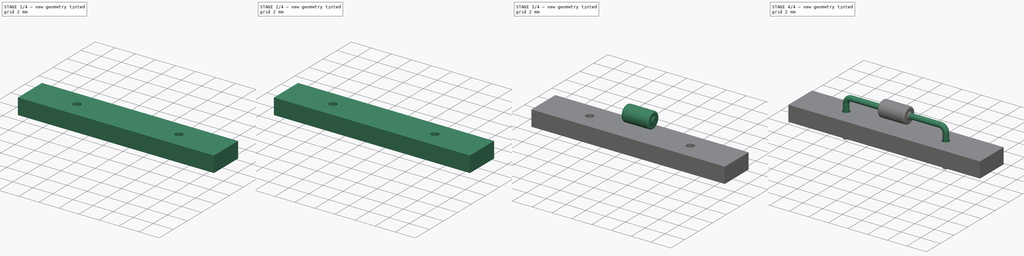
[diagram: build sequence overview — one tinted view per stage of 4, left to right]
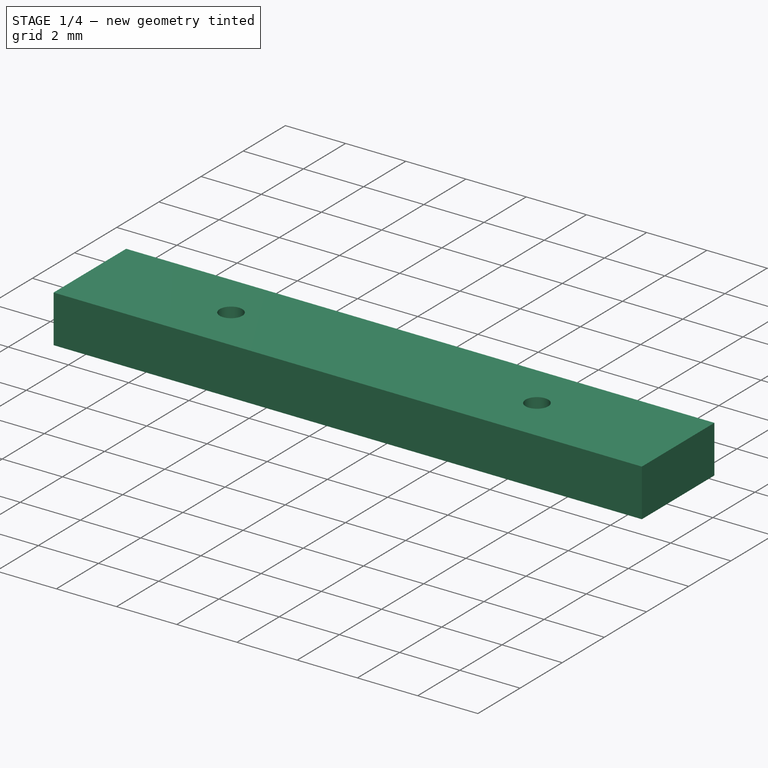
[diagram: stage 1 of 4 — iso view after this stage's code; geometry added in this stage tinted green]
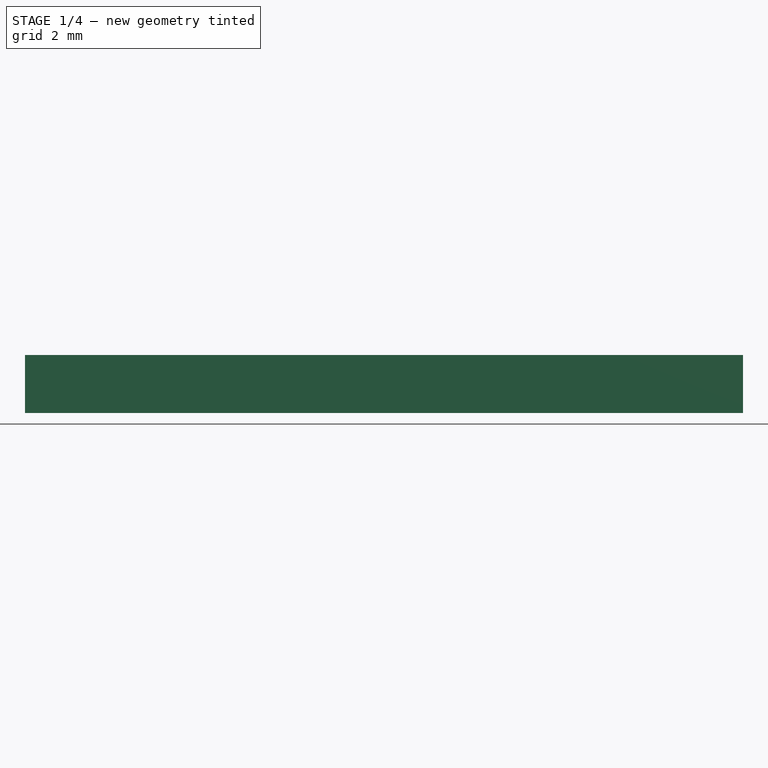
[diagram: stage 1 of 4 — front view after this stage's code; geometry added in this stage tinted green]
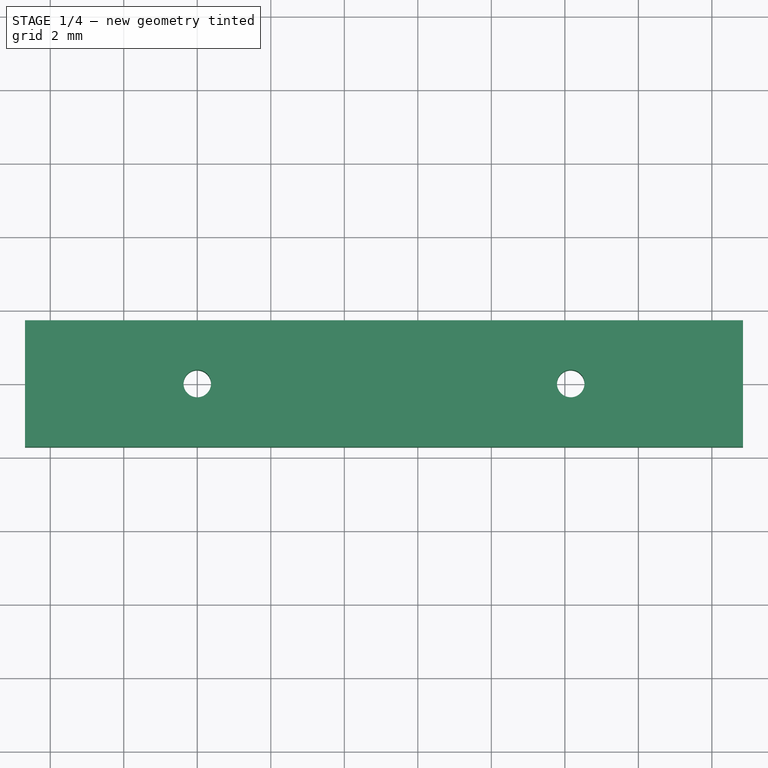
[diagram: stage 1 of 4 — top view after this stage's code; geometry added in this stage tinted green]
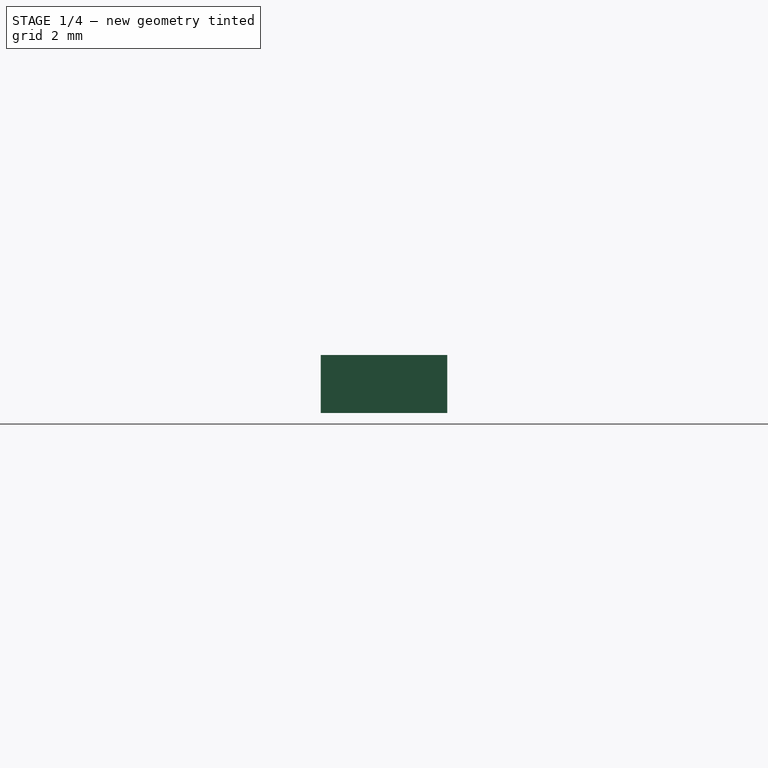
[diagram: stage 1 of 4 — right view after this stage's code; geometry added in this stage tinted green]
FCSTD DOCUMENT  (FreeCAD 0.16R6712 (Git))
Label: D_DO-34_SOD68_P10.16mm_Horizontal
License: All rights reserved
LicenseURL: http://en.wikipedia.org/wiki/All_rights_reserved
objects: Sketcher::SketchObject×7, Part::FeaturePython×7, PartDesign::Revolution×3, Spreadsheet::Sheet×1, Part::Sweep×1, Part::MultiFuse×1, App::DocumentObjectGroup×1
note: 22 computed .brp shape members not serialized (recipe doc carries the construction recipe); baked Part::Feature solids carry a one-line shape summary decoded from their .brp

FEATURE [Part::FeaturePython] THPs  label="PTHs"  # a2plus imported part (geometry in sourceFile) (typed FeaturePython)
  fixedPosition = true
FEATURE [Part::FeaturePython] newPCB  label="Pcb"  # a2plus imported part (geometry in sourceFile) (typed FeaturePython)
  fixedPosition = true
FEATURE [App::DocumentObjectGroup] D_DO_34_SOD68_P10_16mm_Horizontal_fp
  Group = -> [FCrtYd_lines,FFab_lines,Filk_lines,TopPads,BotPads,THPs,newPCB]
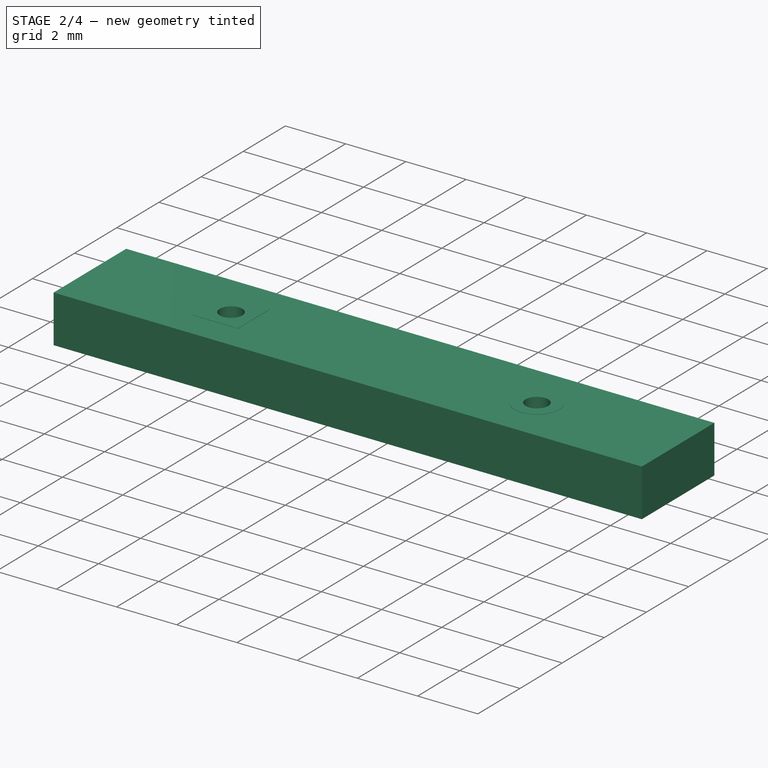
[diagram: stage 2 of 4 — iso view after this stage's code; geometry added in this stage tinted green]
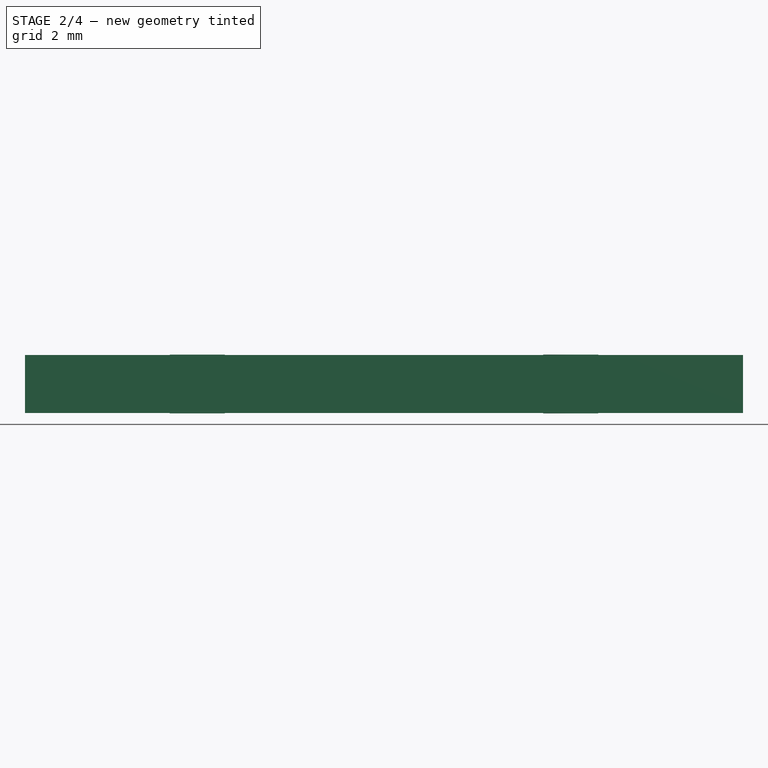
[diagram: stage 2 of 4 — front view after this stage's code; geometry added in this stage tinted green]
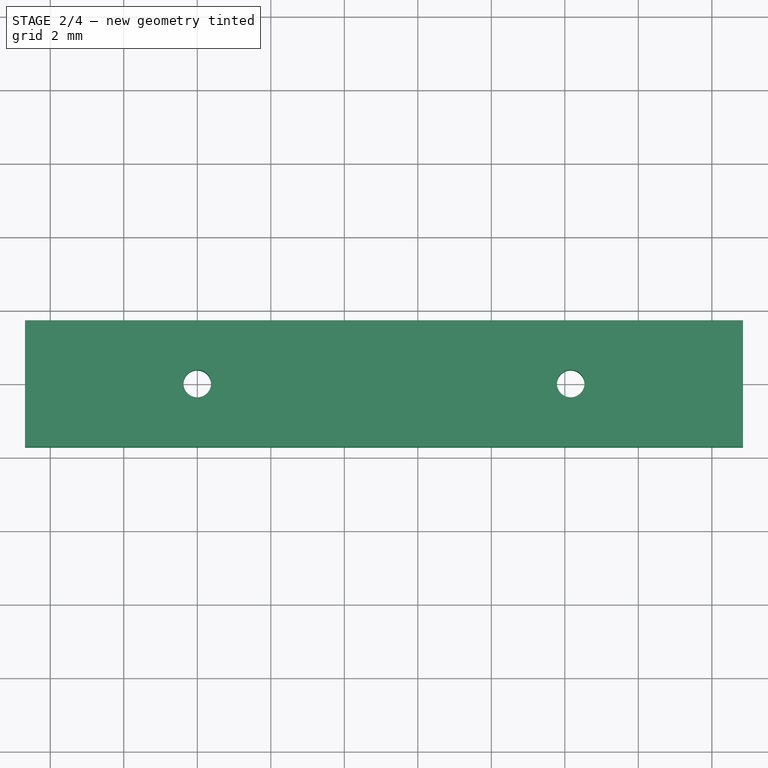
[diagram: stage 2 of 4 — top view after this stage's code; geometry added in this stage tinted green]
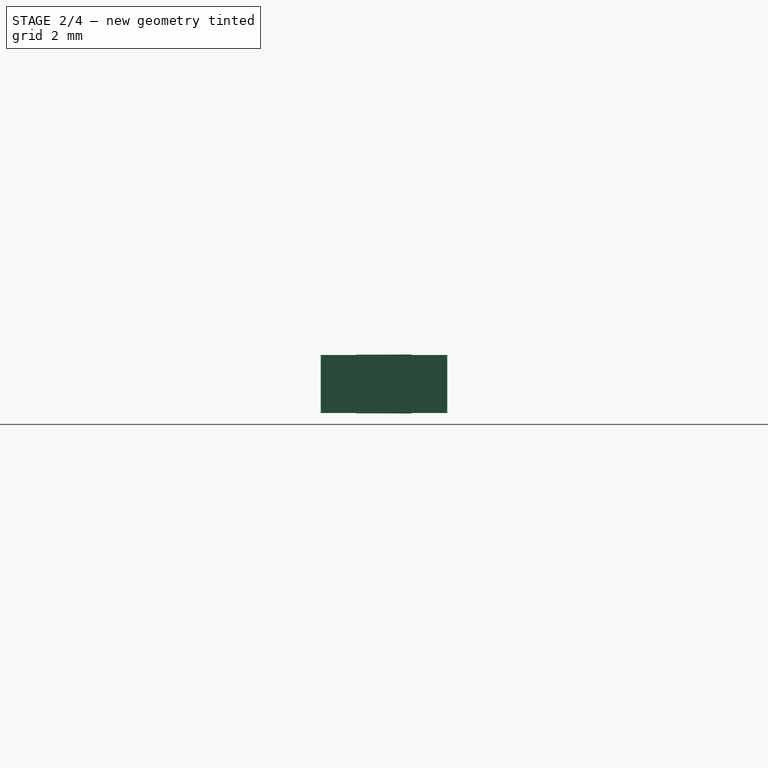
[diagram: stage 2 of 4 — right view after this stage's code; geometry added in this stage tinted green]
FEATURE [Part::FeaturePython] FCrtYd_lines  label="FCrtYd"  # a2plus imported part (geometry in sourceFile) (typed FeaturePython)
  fixedPosition = true
FEATURE [Part::FeaturePython] FFab_lines  label="FFab"  # a2plus imported part (geometry in sourceFile) (typed FeaturePython)
  fixedPosition = true
FEATURE [Part::FeaturePython] Filk_lines  label="FrontSilk"  # a2plus imported part (geometry in sourceFile) (typed FeaturePython)
  fixedPosition = true
FEATURE [Part::FeaturePython] TopPads  # a2plus imported part (geometry in sourceFile) (typed FeaturePython)
  fixedPosition = true
FEATURE [Part::FeaturePython] BotPads  # a2plus imported part (geometry in sourceFile) (typed FeaturePython)
  fixedPosition = true
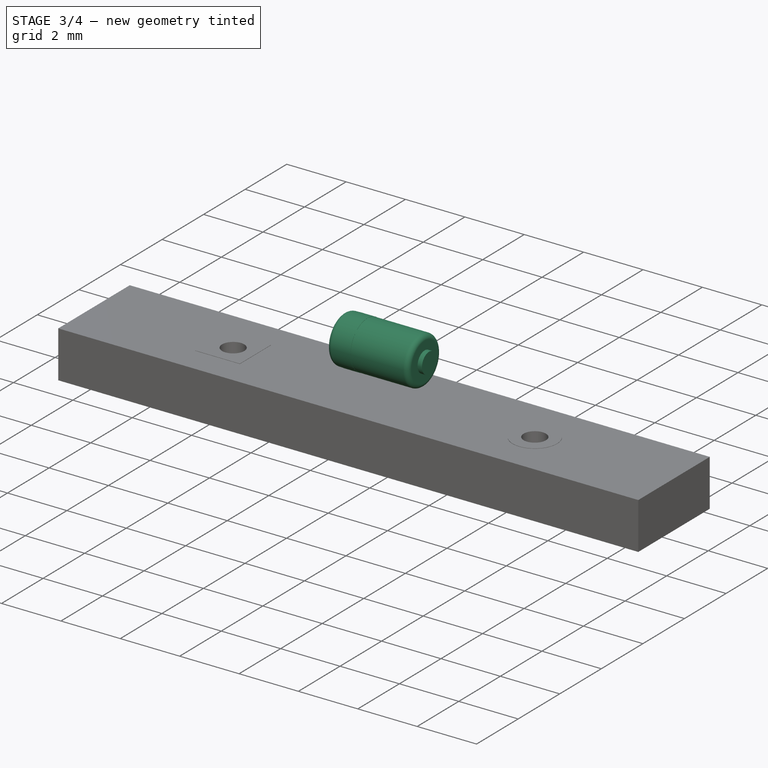
[diagram: stage 3 of 4 — iso view after this stage's code; geometry added in this stage tinted green]
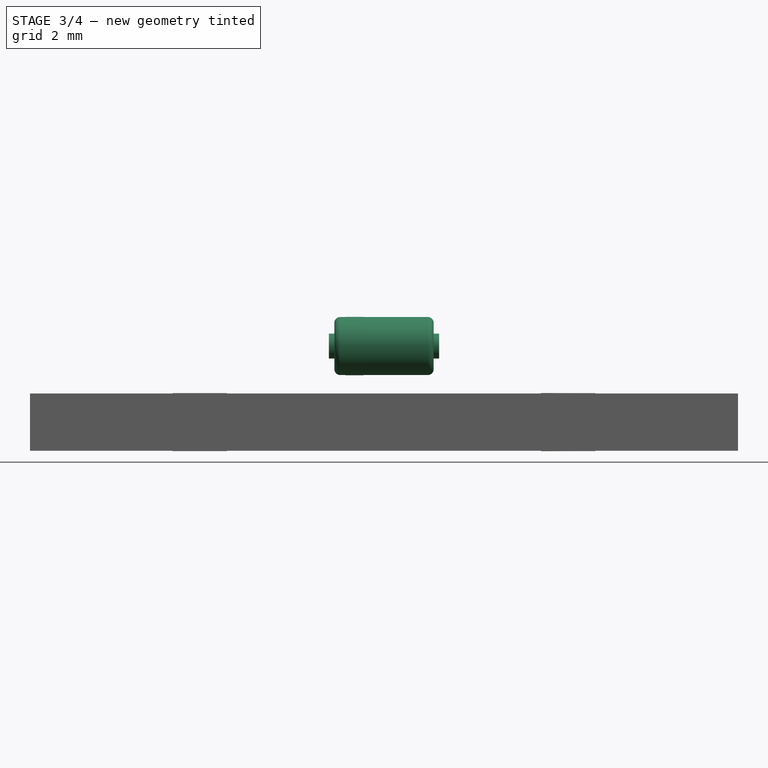
[diagram: stage 3 of 4 — front view after this stage's code; geometry added in this stage tinted green]
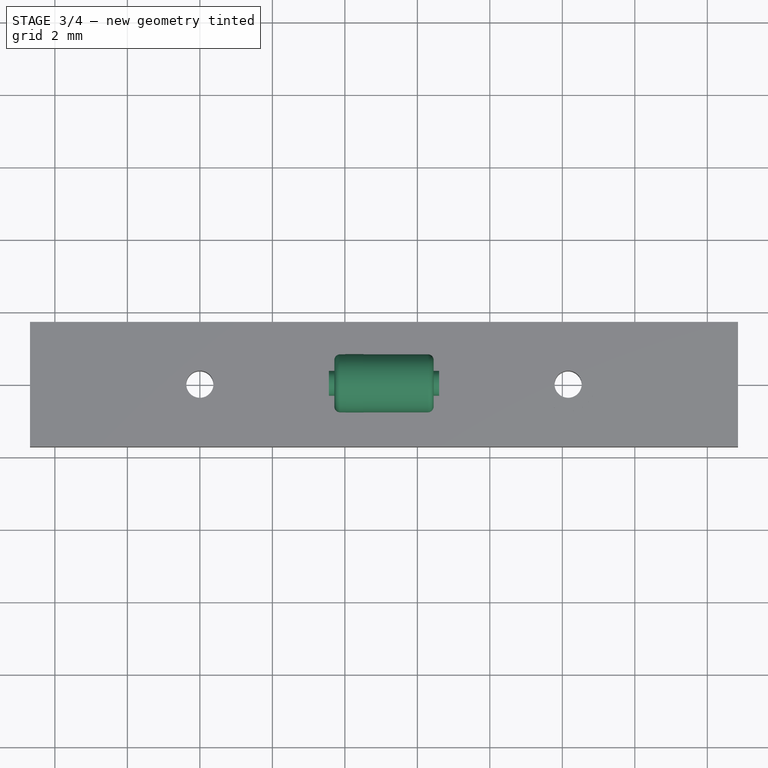
[diagram: stage 3 of 4 — top view after this stage's code; geometry added in this stage tinted green]
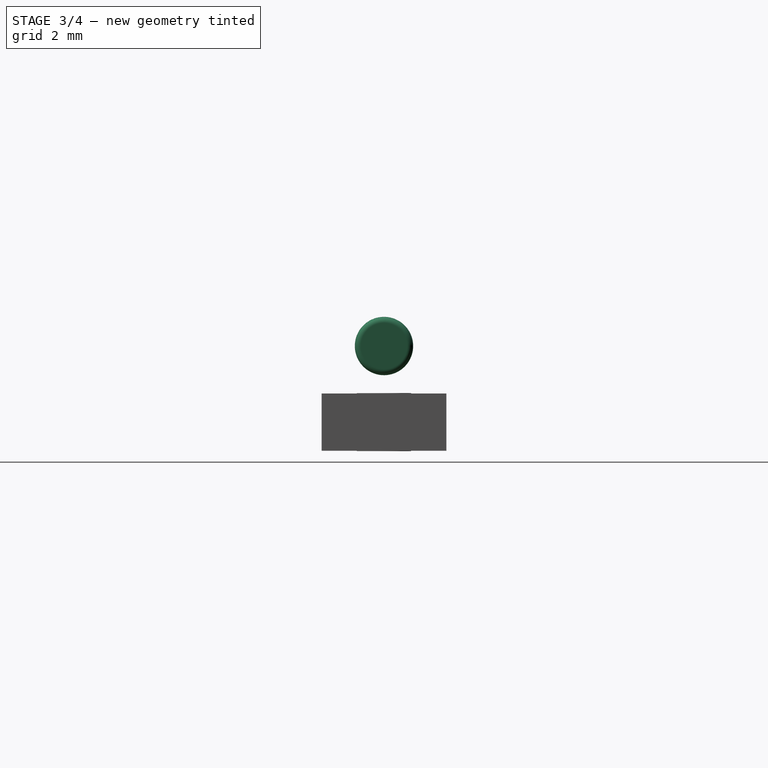
[diagram: stage 3 of 4 — right view after this stage's code; geometry added in this stage tinted green]
FEATURE [Sketcher::SketchObject] Sketch004
  Placement = pos=(0,0,0) rot=(1,0,0;1.5708rad)
  expr: Constraints[17] = Spreadsheet.d * 0.1
  expr: Constraints[15] = Spreadsheet.d / 2
  expr: Constraints[5] = Spreadsheet.L - 0.3
  expr: Constraints[4] = Spreadsheet.RM / 2
  expr: Constraints[1] = Spreadsheet.d / 2 + 0.5
  sketch-geometry (8):
    g0: LineSegment StartX=3.71 StartY=1.3 StartZ=0 EndX=6.45 EndY=1.3 EndZ=0
    g1: GeomPoint [constr] X=5.08 Y=1.3 Z=0
    g2: LineSegment StartX=3.71 StartY=1.3 StartZ=0 EndX=3.71 EndY=1.94 EndZ=0
    g3: LineSegment StartX=3.87 StartY=2.1 StartZ=0 EndX=6.29 EndY=2.1 EndZ=0
    g4: LineSegment StartX=6.45 StartY=1.94 StartZ=0 EndX=6.45 EndY=1.3 EndZ=0
    g5: ArcOfCircle CenterX=6.29 CenterY=1.94 CenterZ=0 NormalX=0 NormalY=0 NormalZ=1 Radius=0.16 StartAngle=0 EndAngle=1.5708
    g6: ArcOfCircle CenterX=3.87 CenterY=1.94 CenterZ=0 NormalX=0 NormalY=0 NormalZ=1 Radius=0.16 StartAngle=1.5708 EndAngle=3.14159
    g7: LineSegment [constr] StartX=5.08 StartY=1.3 StartZ=0 EndX=6.31872 EndY=1.3 EndZ=0
  constraints (20):
    c: Horizontal(g0)
    c: DistanceY(g-1,g0) = 1.3
    c: PointOnObject(g1,g0)
    c: Symmetric(g0,g0,g1)
    c: DistanceX(g-1,g1) = 5.08
    c: DistanceX(g0,g0) = 2.74
    c: Coincident(g2,g0)
    c: Vertical(g2)
    c: Horizontal(g3)
    c: Coincident(g4,g0)
    c: Vertical(g4)
    c: Tangent(g3,g5) = 1.5708
    c: Tangent(g4,g5) = 1.5708
    c: Tangent(g3,g6) = 1.5708
    c: Tangent(g2,g6) = 1.5708
    c: DistanceY(g0,g3) = 0.8
    c: Equal(g5,g6)
    c: Radius(g5) = 0.16
    c: Coincident(g7,g1)
    c: Horizontal(g7)
FEATURE [PartDesign::Revolution] Revolution
  Angle = 360
  Axis = (1.23872,0,0)
  Base = (5.08,0,1.3)
  Placement = pos=(0,0,0) rot=(1,0,0;1.5708rad)
  ReferenceAxis = -> Sketch004 [Axis0]
  Sketch = -> Sketch004
FEATURE [Sketcher::SketchObject] Sketch005
  Placement = pos=(0,0,0) rot=(1,0,0;1.5708rad)
  expr: Constraints[11] = Spreadsheet.d_wire * 1.25 / 2
  expr: Constraints[5] = Spreadsheet.L
  expr: Constraints[4] = Spreadsheet.RM / 2
  expr: Constraints[1] = Spreadsheet.d / 2 + 0.5
  sketch-geometry (6):
    g0: LineSegment StartX=3.56 StartY=1.3 StartZ=0 EndX=6.6 EndY=1.3 EndZ=0
    g1: GeomPoint [constr] X=5.08 Y=1.3 Z=0
    g2: LineSegment StartX=3.56 StartY=1.3 StartZ=0 EndX=3.56 EndY=1.64375 EndZ=0
    g3: LineSegment StartX=3.56 StartY=1.64375 StartZ=0 EndX=6.6 EndY=1.64375 EndZ=0
    g4: LineSegment StartX=6.6 StartY=1.64375 StartZ=0 EndX=6.6 EndY=1.3 EndZ=0
    g5: LineSegment [constr] StartX=5.08 StartY=1.3 StartZ=0 EndX=6.31872 EndY=1.3 EndZ=0
  constraints (16):
    c: Horizontal(g0)
    c: DistanceY(g-1,g0) = 1.3
    c: PointOnObject(g1,g0)
    c: Symmetric(g0,g0,g1)
    c: DistanceX(g-1,g1) = 5.08
    c: DistanceX(g0,g0) = 3.04
    c: Coincident(g2,g0)
    c: Vertical(g2)
    c: Horizontal(g3)
    c: Coincident(g4,g0)
    c: Vertical(g4)
    c: DistanceY(g0,g3) = 0.34375
    c: Coincident(g5,g1)
    c: Horizontal(g5)
    c: Coincident(g3,g4)
    c: Coincident(g3,g2)
FEATURE [PartDesign::Revolution] Revolution001
  Angle = 360
  Axis = (1.23872,0,0)
  Base = (5.08,0,1.3)
  Placement = pos=(0,0,0) rot=(1,0,0;1.5708rad)
  ReferenceAxis = -> Sketch005 [Axis0]
  Sketch = -> Sketch005
FEATURE [Sketcher::SketchObject] Sketch006
  Placement = pos=(0,0,0) rot=(1,0,0;1.5708rad)
  expr: Constraints[0] = Spreadsheet.RM / 2
  expr: Constraints[16] = Spreadsheet.L * 0.35
  expr: Constraints[14] = Spreadsheet.d / 2 + 0.5
  expr: Constraints[13] = Spreadsheet.d / 2
  sketch-geometry (6):
    g0: GeomPoint [constr] X=5.08 Y=1.3 Z=0
    g1: LineSegment [constr] StartX=5.08 StartY=1.3 StartZ=0 EndX=0 EndY=1.3 EndZ=0
    g2: LineSegment StartX=4.516 StartY=2.105 StartZ=0 EndX=4.016 EndY=2.105 EndZ=0
    g3: LineSegment StartX=4.016 StartY=2.105 StartZ=0 EndX=4.016 EndY=2.1 EndZ=0
    g4: LineSegment StartX=4.016 StartY=2.1 StartZ=0 EndX=4.516 EndY=2.1 EndZ=0
    g5: LineSegment StartX=4.516 StartY=2.1 StartZ=0 EndX=4.516 EndY=2.105 EndZ=0
  constraints (17):
    c: DistanceX(g-1,g0) = 5.08
    c: Coincident(g1,g0)
    c: Horizontal(g1)
    c: PointOnObject(g1,g-2)
    c: Coincident(g2,g3)
    c: Coincident(g3,g4)
    c: Coincident(g4,g5)
    c: Coincident(g5,g2)
    c: Horizontal(g2)
    c: Horizontal(g4)
    c: Vertical(g3)
    c: Vertical(g5)
    c: DistanceY(g3,g3) = 0.005
    c: DistanceY(g0,g3) = 0.8
    c: DistanceY(g-1,g1) = 1.3
    c: DistanceX(g2,g2) = 0.5
    c: DistanceX(g2,g0) = 1.064
FEATURE [PartDesign::Revolution] Revolution002
  Angle = 360
  Axis = (-5.08,0,0)
  Base = (5.08,0,1.3)
  Placement = pos=(0,0,0) rot=(1,0,0;1.5708rad)
  ReferenceAxis = -> Sketch006 [Axis0]
  Reversed = true
  Sketch = -> Sketch006
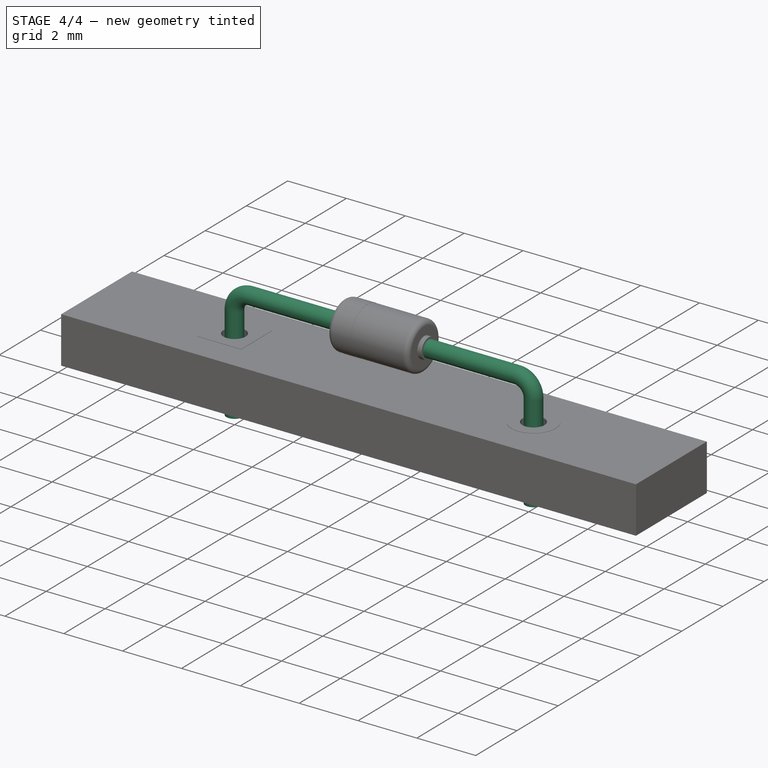
[diagram: stage 4 of 4 — iso view after this stage's code; geometry added in this stage tinted green]
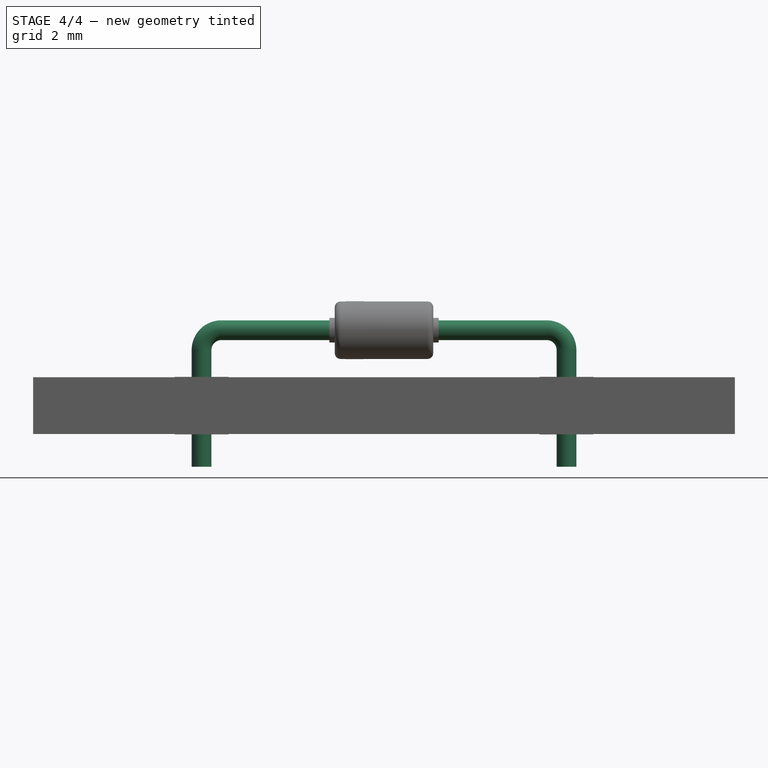
[diagram: stage 4 of 4 — front view after this stage's code; geometry added in this stage tinted green]
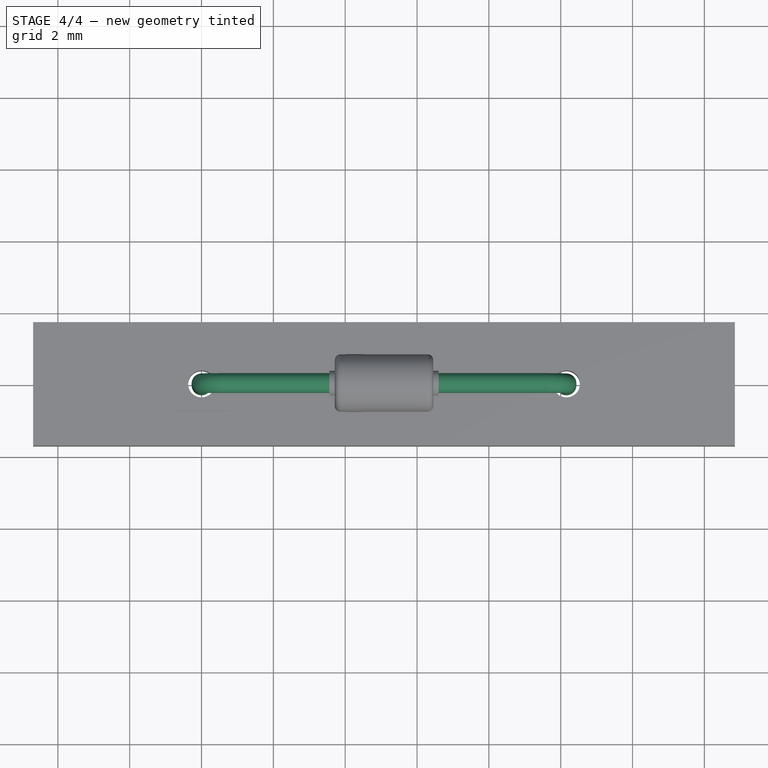
[diagram: stage 4 of 4 — top view after this stage's code; geometry added in this stage tinted green]
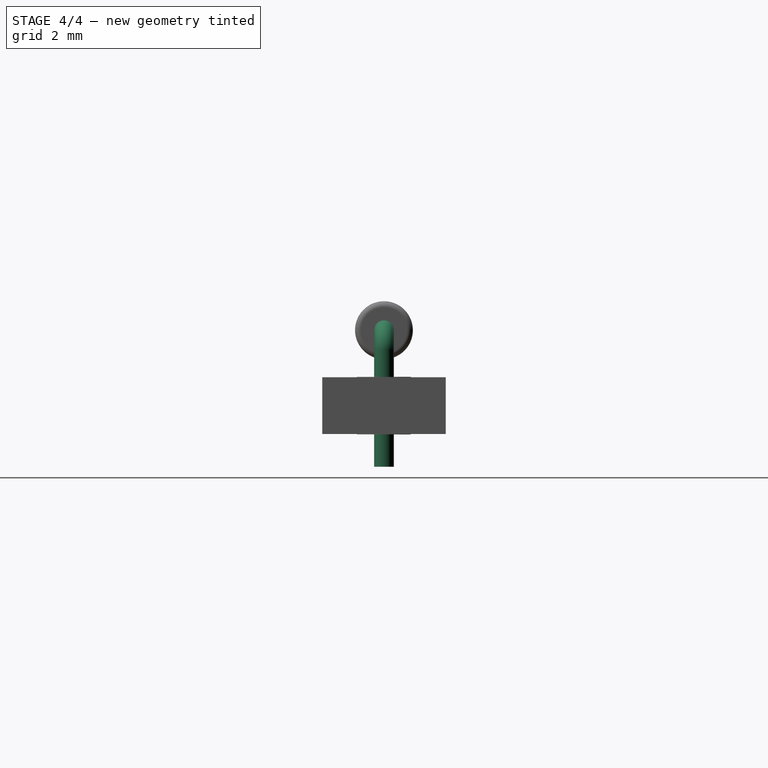
[diagram: stage 4 of 4 — right view after this stage's code; geometry added in this stage tinted green]
FEATURE [Sketcher::SketchObject] Sketch001
  Placement = pos=(0,0,0) rot=(1,0,0;1.5708rad)
  expr: Constraints[10] = Spreadsheet.d / 2 + 0.5
  expr: Constraints[3] = Spreadsheet.RM
  expr: Constraints[14] = Spreadsheet.d_wire
  expr: Constraints[13] = Spreadsheet.d_wire
  sketch-geometry (5):
    g0: LineSegment StartX=0.55 StartY=1.3 StartZ=0 EndX=9.61 EndY=1.3 EndZ=0
    g1: ArcOfCircle CenterX=9.61 CenterY=0.75 CenterZ=0 NormalX=0 NormalY=0 NormalZ=1 Radius=0.55 StartAngle=0 EndAngle=1.5708
    g2: ArcOfCircle CenterX=0.55 CenterY=0.75 CenterZ=0 NormalX=0 NormalY=0 NormalZ=1 Radius=0.55 StartAngle=1.5708 EndAngle=3.14159
    g3: LineSegment StartX=0 StartY=0.75 StartZ=0 EndX=0 EndY=-2.5 EndZ=0
    g4: LineSegment StartX=10.16 StartY=0.75 StartZ=0 EndX=10.16 EndY=-2.5 EndZ=0
  constraints (18):
    c: Horizontal(g0)
    c: Coincident(g1,g0)
    c: Coincident(g2,g0)
    c: DistanceX(g2,g1) = 10.16
    c: Vertical(g3)
    c: Vertical(g4)
    c: PointOnObject(g-1,g3)
    c: DistanceY(g3,g-1) = 2.5
    c: DistanceY(g3,g4) = 0
    c: Coincident(g2,g3)
    c: DistanceY(g-1,g0) = 1.3
    c: DistanceY(g2,g2) = 0
    c: DistanceY(g1,g1) = 0
    c: DistanceX(g2,g0) = 0.55
    c: DistanceX(g0,g1) = 0.55
    c: Coincident(g4,g1)
    c: DistanceX(g0,g2) = 0
    c: DistanceX(g1,g0) = 0
FEATURE [Sketcher::SketchObject] Sketch002  label="Axis0"
  Placement = pos=(0,0,0) rot=(1,0,0;1.5708rad)
  expr: Constraints[1] = Spreadsheet.L
  expr: Constraints[8] = Spreadsheet.d / 2 + 0.5
  expr: Constraints[7] = (Spreadsheet.RM - Spreadsheet.L) / 2
  expr: Constraints[11] = Spreadsheet.d / 2
  sketch-geometry (7):
    g0: LineSegment [constr] StartX=3.56 StartY=1.3 StartZ=0 EndX=6.6 EndY=1.3 EndZ=0
    g1: LineSegment [constr] StartX=3.56 StartY=1.3 StartZ=0 EndX=3.56 EndY=0 EndZ=0
    g2: LineSegment [constr] StartX=3.56 StartY=0 StartZ=0 EndX=0 EndY=0 EndZ=0
    g3: LineSegment StartX=3.56 StartY=1.3 StartZ=0 EndX=6.6 EndY=1.3 EndZ=0
    g4: LineSegment StartX=3.56 StartY=1.3 StartZ=0 EndX=3.56 EndY=2.1 EndZ=0
    g5: LineSegment StartX=6.6 StartY=1.3 StartZ=0 EndX=6.6 EndY=2.1 EndZ=0
    g6: LineSegment StartX=3.56 StartY=2.1 StartZ=0 EndX=6.6 EndY=2.1 EndZ=0
  constraints (19):
    c: Horizontal(g0)
    c: DistanceX(g0,g0) = 3.04
    c: Coincident(g1,g0)
    c: Vertical(g1)
    c: Coincident(g2,g1)
    c: Coincident(g2,g-1)
    c: Horizontal(g2)
    c: DistanceX(g2,g2) = 3.56
    c: DistanceY(g1,g1) = 1.3
    c: Coincident(g3,g0)
    c: Vertical(g4)
    c: DistanceY(g4,g4) = 0.8
    c: Coincident(g4,g0)
    c: Coincident(g5,g0)
    c: Vertical(g5)
    c: Equal(g5,g4)
    c: Coincident(g3,g0)
    c: Coincident(g6,g4)
    c: Coincident(g6,g5)
FEATURE [Sketcher::SketchObject] Sketch003
  Placement = pos=(0,0,0) rot=(1,0,0;1.5708rad)
  expr: Constraints[12] = Spreadsheet.L * 0.25
  expr: Constraints[13] = Spreadsheet.d / 2 - 0.01
  expr: Constraints[14] = (Spreadsheet.RM - Spreadsheet.L) / 2 + 0.15 * Spreadsheet.L
  expr: Constraints[2] = Spreadsheet.d / 2 + 0.5
  sketch-geometry (5):
    g0: LineSegment [constr] StartX=0 StartY=1.3 StartZ=0 EndX=4.17342 EndY=1.3 EndZ=0
    g1: LineSegment StartX=4.016 StartY=2.11 StartZ=0 EndX=4.776 EndY=2.11 EndZ=0
    g2: LineSegment StartX=4.776 StartY=2.11 StartZ=0 EndX=4.776 EndY=2.09 EndZ=0
    g3: LineSegment StartX=4.776 StartY=2.09 StartZ=0 EndX=4.016 EndY=2.09 EndZ=0
    g4: LineSegment StartX=4.016 StartY=2.09 StartZ=0 EndX=4.016 EndY=2.11 EndZ=0
  constraints (15):
    c: PointOnObject(g0,g-2)
    c: Horizontal(g0)
    c: DistanceY(g-1,g0) = 1.3
    c: Coincident(g1,g2)
    c: Coincident(g2,g3)
    c: Coincident(g3,g4)
    c: Coincident(g4,g1)
    c: Horizontal(g1)
    c: Horizontal(g3)
    c: Vertical(g2)
    c: Vertical(g4)
    c: DistanceY(g2,g1) = 0.02
    c: DistanceX(g1,g1) = 0.76
    c: DistanceY(g0,g2) = 0.79
    c: DistanceX(g0,g3) = 4.016
FEATURE [Sketcher::SketchObject] Sketch
  Placement = pos=(0,0,-2) rot=(0,0,1;0rad)
  expr: Constraints[1] = Spreadsheet.d_wire / 2
  sketch-geometry (1):
    g0: Circle CenterX=0 CenterY=0 CenterZ=0 NormalX=0 NormalY=0 NormalZ=1 Radius=0.275
  constraints (2):
    c: Coincident(g0,g-1)
    c: Radius(g0) = 0.275
FEATURE [Spreadsheet::Sheet] Spreadsheet
  cells = A1=L; B1(L)=3.04; A2=d; B2(d)=1.6; C2(d2)=0; A3=RM; B3(RM)=10.16; C3(shuntPinsRM)=0; A4=d_wire; B4(d_wire)=0.55
FEATURE [Part::Sweep] Sweep
  Frenet = false
  Sections = -> [Sketch]
  Solid = true
  Spine = -> Sketch001 [Edge1,Edge2,Edge3,Edge4,Edge5]
  Transition = 1
FEATURE [Part::MultiFuse] Revolution002_mp_cp  label="D_DO-34_SOD68_P10.16mm_Horizontal"
  Shapes = -> [Revolution002,Revolution001,Revolution,Sweep]
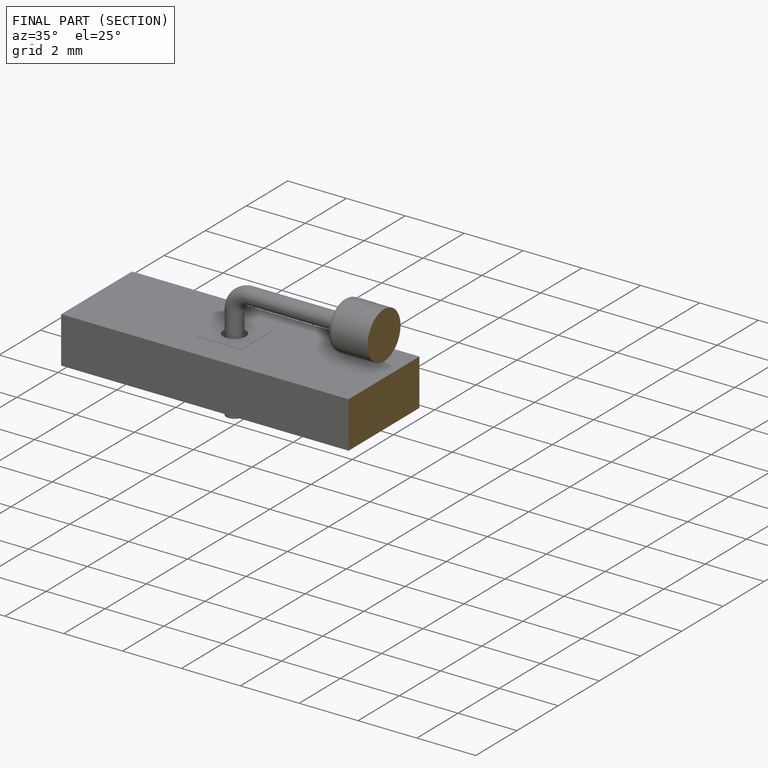
[diagram: finished part — half-section view (interior)]
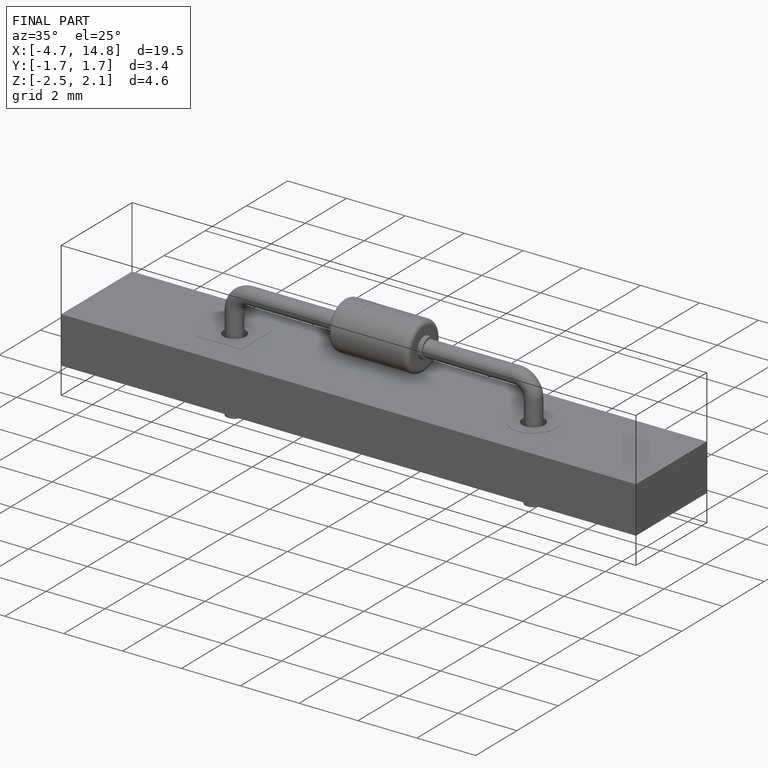
[diagram: finished part — iso view with bounding-box wireframe]
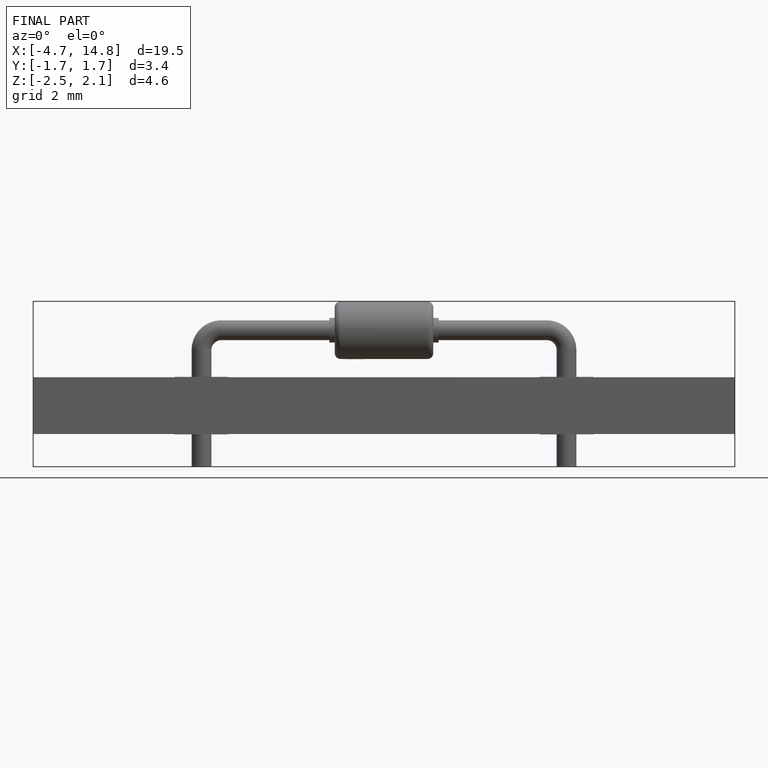
[diagram: finished part — front view with bounding-box wireframe]
